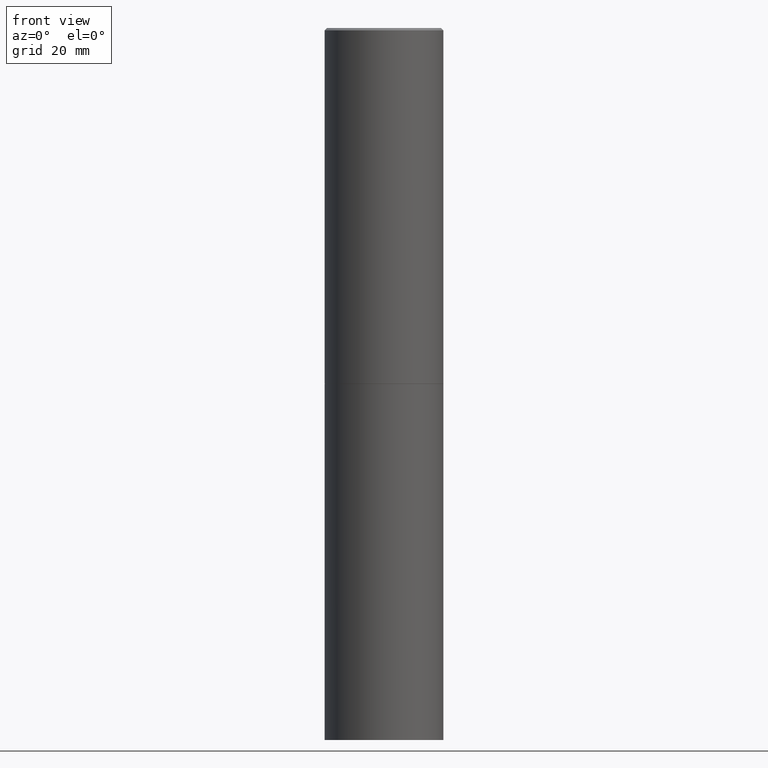
[diagram: clean part render]
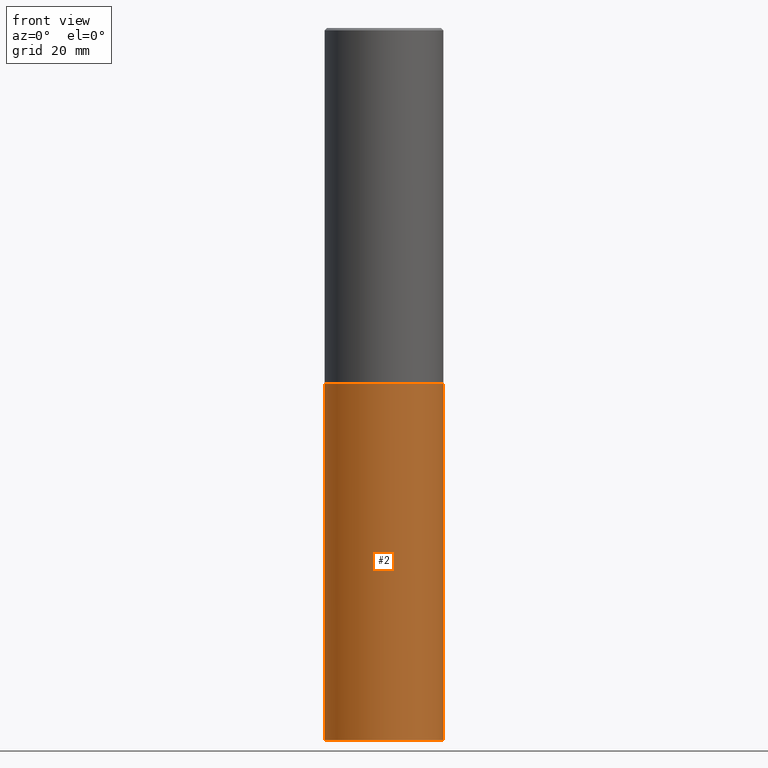
[diagram: same view with one face highlighted and labeled with its STEP entity id]
A machine part, front view. The second image highlights one B-rep face of the part: STEP entity #2.
In plain terms, the highlighted cylindrical surface (partial cylindrical patch) has radius 12.5006 mm, axis along (-0, 0, 1).
Its self-contained STEP definition (entity closure, byte-faithful):
#2 = ADVANCED_FACE ( 'NONE', ( #120 ), #249, .T. ) ;
#6 = VERTEX_POINT ( 'NONE', #236 ) ;
#15 = CARTESIAN_POINT ( 'NONE',  ( 7.220735744022852519E-29, -1.030929694920215502E-14, -2.952700000000000102 ) ) ;
#17 = ORIENTED_EDGE ( 'NONE', *, *, #345, .F. ) ;
#46 = AXIS2_PLACEMENT_3D ( 'NONE', #15, #311, #61 ) ;
#50 = DIRECTION ( 'NONE',  ( -2.445468806185136877E-29, 3.491481338843145188E-15, 1.000000000000000000 ) ) ;
#54 = CIRCLE ( 'NONE', #302, 0.4921499999999999764 ) ;
#57 = AXIS2_PLACEMENT_3D ( 'NONE', #222, #88, #137 ) ;
#58 = VERTEX_POINT ( 'NONE', #83 ) ;
#61 = DIRECTION ( 'NONE',  ( 1.000000000000000000, -6.982962677686265922E-15, 0.000000000000000000 ) ) ;
#69 = EDGE_CURVE ( 'NONE', #58, #6, #239, .T. ) ;
#80 = LINE ( 'NONE', #298, #138 ) ;
#83 = CARTESIAN_POINT ( 'NONE',  ( 0.4921499999999999764, -2.405560812836148932E-14, -5.905499999999999972 ) ) ;
#88 = DIRECTION ( 'NONE',  ( -2.445468806185136597E-29, 3.491481338843145583E-15, 1.000000000000000000 ) ) ;
#91 = EDGE_LOOP ( 'NONE', ( #17, #346, #309, #111 ) ) ;
#99 = VECTOR ( 'NONE', #125, 39.37007874015748143 ) ;
#110 = CIRCLE ( 'NONE', #46, 0.4921499999999999764 ) ;
#111 = ORIENTED_EDGE ( 'NONE', *, *, #332, .F. ) ;
#120 = FACE_OUTER_BOUND ( 'NONE', #91, .T. ) ;
#125 = DIRECTION ( 'NONE',  ( -2.445468806185136877E-29, 3.491481338843145188E-15, 1.000000000000000000 ) ) ;
#137 = DIRECTION ( 'NONE',  ( 1.000000000000000000, -6.982962677686265922E-15, 4.876176775795935793E-29 ) ) ;
#138 = VECTOR ( 'NONE', #50, 39.37007874015748143 ) ;
#156 = CARTESIAN_POINT ( 'NONE',  ( -0.4921499999999999764, -1.196718392382684217E-14, -2.952700000000000102 ) ) ;
#202 = CARTESIAN_POINT ( 'NONE',  ( -0.4921499999999999764, -1.196718392382684217E-14, -5.905499999999999972 ) ) ;
#222 = CARTESIAN_POINT ( 'NONE',  ( 0.000000000000000000, 0.000000000000000000, 0.000000000000000000 ) ) ;
#236 = CARTESIAN_POINT ( 'NONE',  ( 0.4921499999999999764, -1.374596203102545079E-14, -2.952700000000000102 ) ) ;
#239 = LINE ( 'NONE', #359, #99 ) ;
#249 = CYLINDRICAL_SURFACE ( 'NONE', #57, 0.4921499999999999764 ) ;
#263 = DIRECTION ( 'NONE',  ( 1.000000000000000000, -6.982962677686265922E-15, 0.000000000000000000 ) ) ;
#290 = CARTESIAN_POINT ( 'NONE',  ( 1.444171603492632270E-28, -2.061894304653819197E-14, -5.905499999999999972 ) ) ;
#298 = CARTESIAN_POINT ( 'NONE',  ( -0.4921499999999999764, 3.496936074043332897E-15, -2.420853904668951509E-29 ) ) ;
#302 = AXIS2_PLACEMENT_3D ( 'NONE', #290, #317, #263 ) ;
#309 = ORIENTED_EDGE ( 'NONE', *, *, #69, .T. ) ;
#311 = DIRECTION ( 'NONE',  ( -2.445468806185136597E-29, 3.491481338843145583E-15, 1.000000000000000000 ) ) ;
#317 = DIRECTION ( 'NONE',  ( -2.445468806185136597E-29, 3.491481338843145583E-15, 1.000000000000000000 ) ) ;
#321 = VERTEX_POINT ( 'NONE', #202 ) ;
#322 = EDGE_CURVE ( 'NONE', #321, #58, #54, .T. ) ;
#332 = EDGE_CURVE ( 'NONE', #342, #6, #110, .T. ) ;
#342 = VERTEX_POINT ( 'NONE', #156 ) ;
#345 = EDGE_CURVE ( 'NONE', #321, #342, #80, .T. ) ;
#346 = ORIENTED_EDGE ( 'NONE', *, *, #322, .T. ) ;
#359 = CARTESIAN_POINT ( 'NONE',  ( 0.4921499999999999764, -3.436665081823295777E-15, 2.399810400207969603E-29 ) ) ;